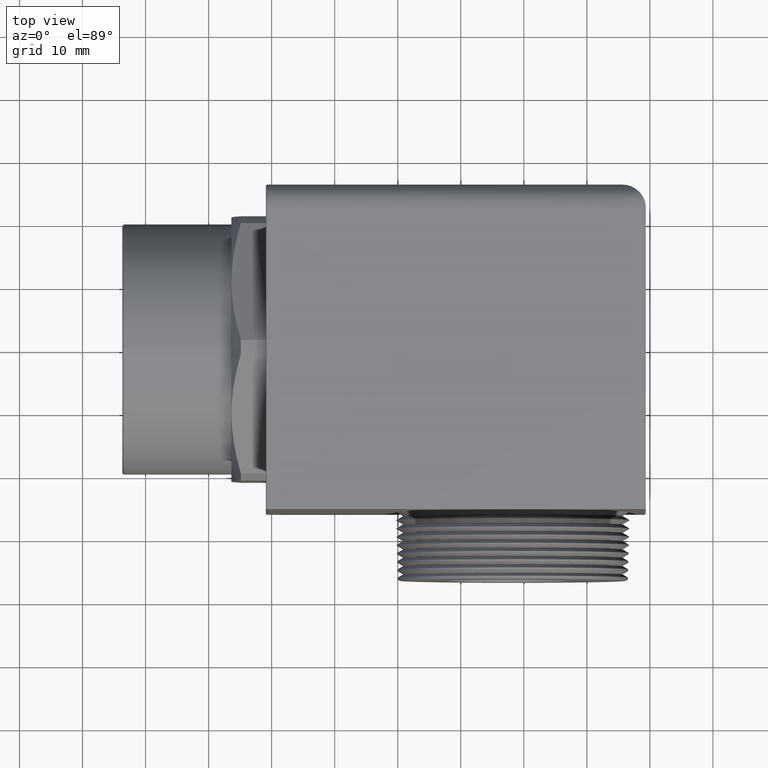
[diagram: clean part render]
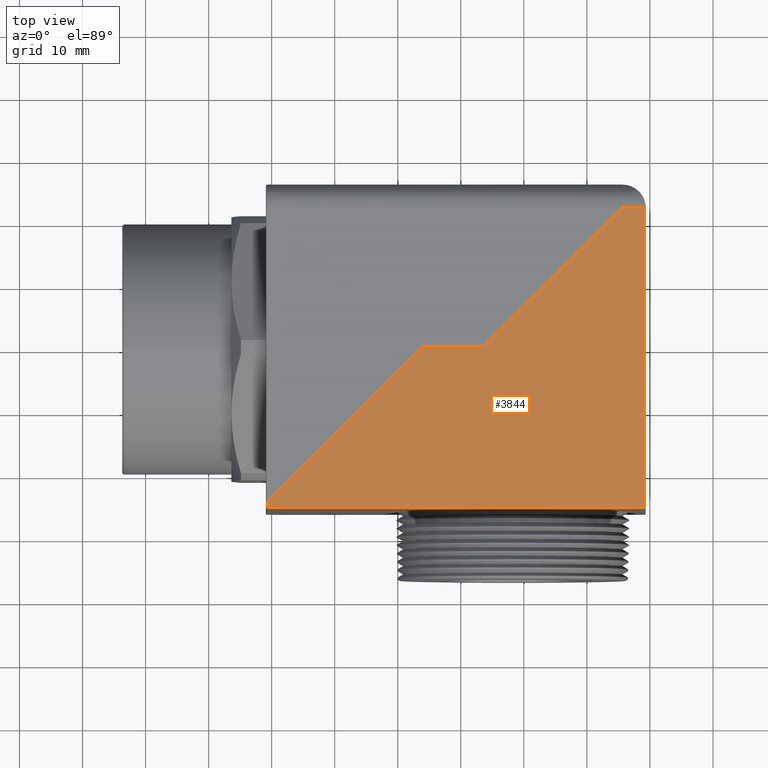
[diagram: same view with one face highlighted and labeled with its STEP entity id]
A machine part, top view. The second image highlights one B-rep face of the part: STEP entity #3844.
In plain terms, the highlighted planar face has unit normal (0, 0, -1).
Its self-contained STEP definition (entity closure, byte-faithful):
#4 = ORIENTED_EDGE ( 'NONE', *, *, #3665, .F. ) ;
#5 = ORIENTED_EDGE ( 'NONE', *, *, #3593, .F. ) ;
#7 = ORIENTED_EDGE ( 'NONE', *, *, #3638, .F. ) ;
#8 = ORIENTED_EDGE ( 'NONE', *, *, #9, .T. ) ;
#9 = EDGE_CURVE ( 'NONE', #3660, #3729, #2054, .T. ) ;
#11 = ORIENTED_EDGE ( 'NONE', *, *, #12, .T. ) ;
#12 = EDGE_CURVE ( 'NONE', #3748, #3782, #2050, .T. ) ;
#13 = ORIENTED_EDGE ( 'NONE', *, *, #3789, .T. ) ;
#566 = DIRECTION ( 'NONE',  ( 0.7071067811865512400, 0.7071067811865436900, 0.0000000000000000000 ) ) ;
#567 = VECTOR ( 'NONE', #566, 39.37007874015748900 ) ;
#568 = CARTESIAN_POINT ( 'NONE',  ( 1.893833333333333700, 0.9658333333333334300, 1.014999999999999900 ) ) ;
#569 = LINE ( 'NONE', #568, #567 ) ;
#597 = CARTESIAN_POINT ( 'NONE',  ( 0.9279999999999899400, 0.0000000000000000000, 1.014999999999999900 ) ) ;
#637 = CARTESIAN_POINT ( 'NONE',  ( 1.795499999999999200, 0.8674999999999999400, 1.014999999999999900 ) ) ;
#658 = CARTESIAN_POINT ( 'NONE',  ( 0.5451000000000101300, 1.365923996832131600E-016, 1.014999999999999900 ) ) ;
#672 = DIRECTION ( 'NONE',  ( 0.7071067811865474600, 0.7071067811865474600, 0.0000000000000000000 ) ) ;
#673 = VECTOR ( 'NONE', #672, 39.37007874015748900 ) ;
#674 = CARTESIAN_POINT ( 'NONE',  ( 1.702383333333338500, 1.157283333333328300, 1.014999999999999900 ) ) ;
#675 = LINE ( 'NONE', #674, #673 ) ;
#724 = DIRECTION ( 'NONE',  ( 1.000000000000000000, 0.0000000000000000000, 0.0000000000000000000 ) ) ;
#725 = VECTOR ( 'NONE', #724, 39.37007874015748100 ) ;
#726 = CARTESIAN_POINT ( 'NONE',  ( 1.943000000000000100, 0.0000000000000000000, 1.014999999999999900 ) ) ;
#727 = LINE ( 'NONE', #726, #725 ) ;
#728 = CARTESIAN_POINT ( 'NONE',  ( -0.4199000000000000500, -0.9650000000000101800, 1.014999999999999900 ) ) ;
#849 = CARTESIAN_POINT ( 'NONE',  ( -0.4199000000000000500, -1.005000000000000100, 1.014999999999999900 ) ) ;
#854 = DIRECTION ( 'NONE',  ( 1.000000000000000000, 1.151269751639033700E-016, 0.0000000000000000000 ) ) ;
#855 = VECTOR ( 'NONE', #854, 39.37007874015748100 ) ;
#856 = CARTESIAN_POINT ( 'NONE',  ( 1.943000000000000300, -1.004999999999999900, 1.014999999999999900 ) ) ;
#857 = LINE ( 'NONE', #856, #855 ) ;
#900 = CARTESIAN_POINT ( 'NONE',  ( 1.933000000000000700, -1.004999999999999900, 1.014999999999999900 ) ) ;
#945 = CARTESIAN_POINT ( 'NONE',  ( 1.933000000000000500, 0.8674999999999999400, 1.014999999999999900 ) ) ;
#966 = DIRECTION ( 'NONE',  ( -1.000000000000000000, 0.0000000000000000000, 0.0000000000000000000 ) ) ;
#967 = VECTOR ( 'NONE', #966, 39.37007874015748100 ) ;
#968 = CARTESIAN_POINT ( 'NONE',  ( 1.943000000000000100, 0.8674999999999999400, 1.014999999999999900 ) ) ;
#969 = LINE ( 'NONE', #968, #967 ) ;
#1042 = DIRECTION ( 'NONE',  ( -1.000000000000000000, 0.0000000000000000000, 0.0000000000000000000 ) ) ;
#1043 = DIRECTION ( 'NONE',  ( 0.0000000000000000000, 0.0000000000000000000, -1.000000000000000000 ) ) ;
#1044 = CARTESIAN_POINT ( 'NONE',  ( 1.943000000000000100, 0.9166666666666666300, 1.014999999999999900 ) ) ;
#1045 = AXIS2_PLACEMENT_3D ( 'NONE', #1044, #1043, #1042 ) ;
#1046 = PLANE ( 'NONE',  #1045 ) ;
#1047 = FACE_OUTER_BOUND ( 'NONE', #3847, .T. ) ;
#2047 = DIRECTION ( 'NONE',  ( -1.345737927913430100E-016, 1.000000000000000000, 0.0000000000000000000 ) ) ;
#2048 = VECTOR ( 'NONE', #2047, 39.37007874015748100 ) ;
#2049 = CARTESIAN_POINT ( 'NONE',  ( 1.933000000000000500, 0.8674999999999999400, 1.014999999999999900 ) ) ;
#2050 = LINE ( 'NONE', #2049, #2048 ) ;
#2051 = DIRECTION ( 'NONE',  ( 0.0000000000000000000, -1.000000000000000000, 0.0000000000000000000 ) ) ;
#2052 = VECTOR ( 'NONE', #2051, 39.37007874015748100 ) ;
#2053 = CARTESIAN_POINT ( 'NONE',  ( -0.4199000000000000500, 0.9166666666666666300, 1.014999999999999900 ) ) ;
#2054 = LINE ( 'NONE', #2053, #2052 ) ;
#3593 = EDGE_CURVE ( 'NONE', #3603, #3615, #569, .T. ) ;
#3603 = VERTEX_POINT ( 'NONE', #597 ) ;
#3615 = VERTEX_POINT ( 'NONE', #637 ) ;
#3626 = VERTEX_POINT ( 'NONE', #658 ) ;
#3638 = EDGE_CURVE ( 'NONE', #3660, #3626, #675, .T. ) ;
#3660 = VERTEX_POINT ( 'NONE', #728 ) ;
#3665 = EDGE_CURVE ( 'NONE', #3626, #3603, #727, .T. ) ;
#3729 = VERTEX_POINT ( 'NONE', #849 ) ;
#3746 = EDGE_CURVE ( 'NONE', #3729, #3748, #857, .T. ) ;
#3748 = VERTEX_POINT ( 'NONE', #900 ) ;
#3782 = VERTEX_POINT ( 'NONE', #945 ) ;
#3789 = EDGE_CURVE ( 'NONE', #3782, #3615, #969, .T. ) ;
#3841 = ORIENTED_EDGE ( 'NONE', *, *, #3746, .T. ) ;
#3844 = ADVANCED_FACE ( 'NONE', ( #1047 ), #1046, .F. ) ;
#3847 = EDGE_LOOP ( 'NONE', ( #3841, #11, #13, #5, #4, #7, #8 ) ) ;